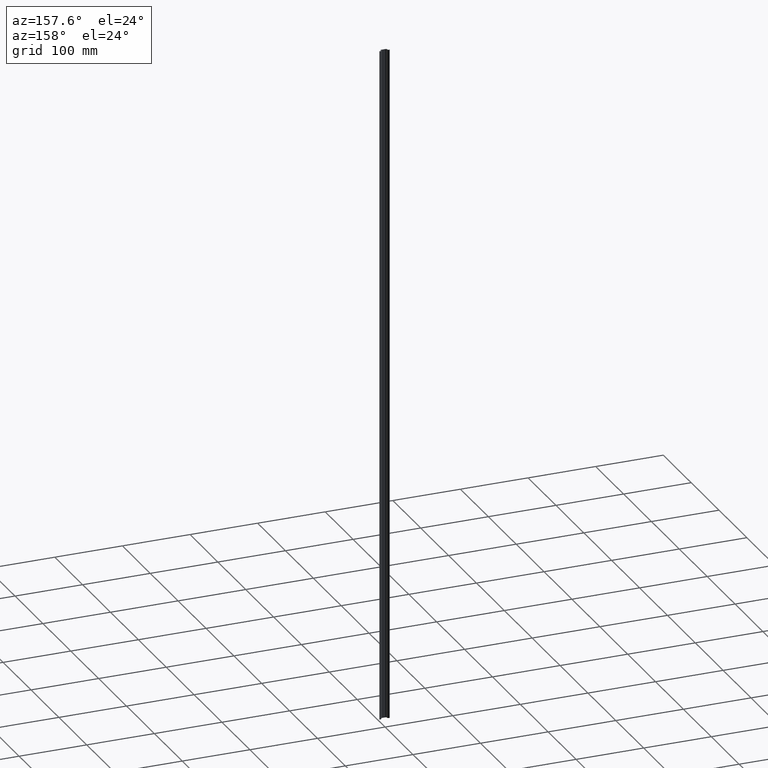
[diagram: clean part render]
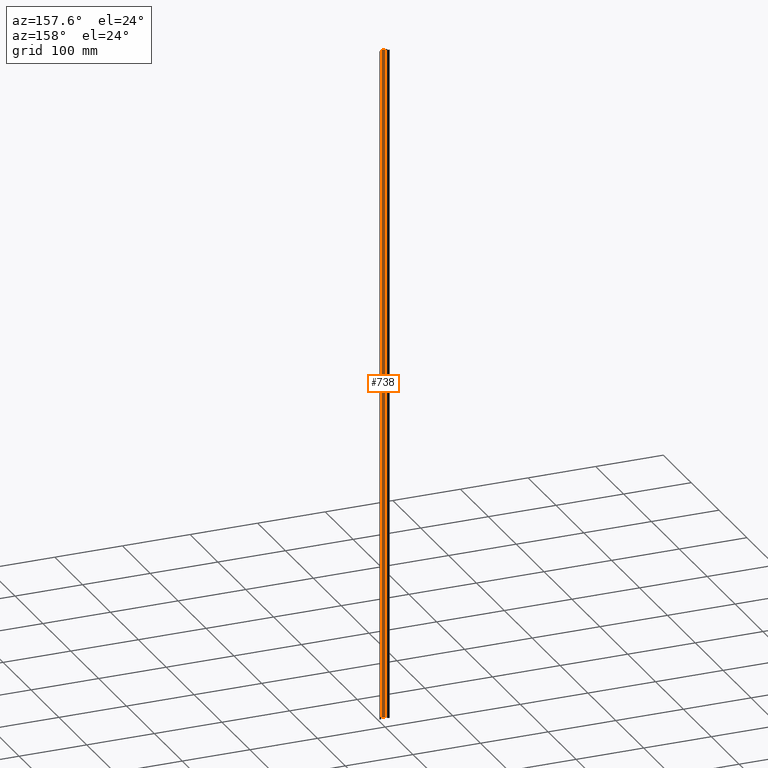
[diagram: same view with one face highlighted and labeled with its STEP entity id]
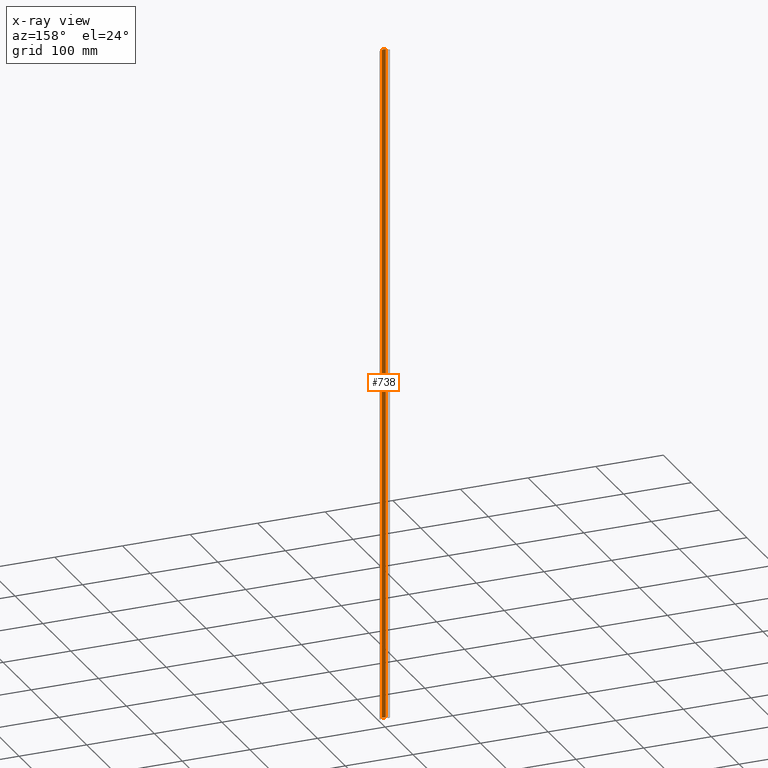
[diagram: x-ray of the same camera — body ghosted, the highlighted face saturated]
A machine part, auxiliary view. The second image highlights one B-rep face of the part: STEP entity #738.
The next image is the same camera in x-ray: the body ghosted, the highlighted face saturated — about 0% of this face is hidden behind the body in this view.
In plain terms, the highlighted planar face has unit normal (0, -1, 0).
Its self-contained STEP definition (entity closure, byte-faithful):
#25 = VECTOR ( 'NONE', #450, 1000.000000000000000 ) ;
#33 = VECTOR ( 'NONE', #385, 1000.000000000000000 ) ;
#39 = VECTOR ( 'NONE', #396, 1000.000000000000000 ) ;
#49 = VECTOR ( 'NONE', #491, 1000.000000000000000 ) ;
#64 = AXIS2_PLACEMENT_3D ( 'NONE', #543, #514, #540 ) ;
#136 = ORIENTED_EDGE ( 'NONE', *, *, #707, .T. ) ;
#160 = ORIENTED_EDGE ( 'NONE', *, *, #695, .T. ) ;
#168 = ORIENTED_EDGE ( 'NONE', *, *, #698, .F. ) ;
#186 = ORIENTED_EDGE ( 'NONE', *, *, #727, .T. ) ;
#257 = VERTEX_POINT ( 'NONE', #285 ) ;
#275 = VERTEX_POINT ( 'NONE', #358 ) ;
#280 = VERTEX_POINT ( 'NONE', #356 ) ;
#285 = CARTESIAN_POINT ( 'NONE',  ( 5.499999999999274400, 1.299999999999908800, 0.0000000000000000000 ) ) ;
#289 = EDGE_LOOP ( 'NONE', ( #168, #136, #186, #160 ) ) ;
#308 = VERTEX_POINT ( 'NONE', #331 ) ;
#318 = LINE ( 'NONE', #357, #33 ) ;
#331 = CARTESIAN_POINT ( 'NONE',  ( -8.673617379884035500E-015, 1.299999999999908800, 0.0000000000000000000 ) ) ;
#356 = CARTESIAN_POINT ( 'NONE',  ( -8.673617379884035500E-015, 1.299999999999936800, 1000.000000000000000 ) ) ;
#357 = CARTESIAN_POINT ( 'NONE',  ( -8.673617379884035500E-015, 1.299999999999908800, 1000.000000000000000 ) ) ;
#358 = CARTESIAN_POINT ( 'NONE',  ( 5.499999999999274400, 1.299999999999936800, 1000.000000000000000 ) ) ;
#376 = LINE ( 'NONE', #395, #25 ) ;
#385 = DIRECTION ( 'NONE',  ( -0.0000000000000000000, 0.0000000000000000000, 1.000000000000000000 ) ) ;
#390 = CARTESIAN_POINT ( 'NONE',  ( -3.700000000000881300, 1.299999999999964700, 1000.000000000000000 ) ) ;
#395 = CARTESIAN_POINT ( 'NONE',  ( 5.499999999999274400, 1.299999999999908800, 1000.000000000000000 ) ) ;
#396 = DIRECTION ( 'NONE',  ( -1.000000000000000000, -0.0000000000000000000, 0.0000000000000000000 ) ) ;
#406 = LINE ( 'NONE', #390, #39 ) ;
#450 = DIRECTION ( 'NONE',  ( 0.0000000000000000000, -0.0000000000000000000, -1.000000000000000000 ) ) ;
#460 = FACE_OUTER_BOUND ( 'NONE', #289, .T. ) ;
#478 = CARTESIAN_POINT ( 'NONE',  ( 5.499999999999274400, 1.299999999999908800, 0.0000000000000000000 ) ) ;
#483 = LINE ( 'NONE', #478, #49 ) ;
#488 = PLANE ( 'NONE',  #64 ) ;
#491 = DIRECTION ( 'NONE',  ( -1.000000000000000000, -0.0000000000000000000, -0.0000000000000000000 ) ) ;
#514 = DIRECTION ( 'NONE',  ( 0.0000000000000000000, -1.000000000000000000, 0.0000000000000000000 ) ) ;
#540 = DIRECTION ( 'NONE',  ( 0.0000000000000000000, -0.0000000000000000000, -1.000000000000000000 ) ) ;
#543 = CARTESIAN_POINT ( 'NONE',  ( 5.499999999999274400, 1.299999999999908800, 1000.000000000000000 ) ) ;
#695 = EDGE_CURVE ( 'NONE', #308, #280, #318, .T. ) ;
#698 = EDGE_CURVE ( 'NONE', #275, #280, #406, .T. ) ;
#707 = EDGE_CURVE ( 'NONE', #275, #257, #376, .T. ) ;
#727 = EDGE_CURVE ( 'NONE', #257, #308, #483, .T. ) ;
#738 = ADVANCED_FACE ( 'NONE', ( #460 ), #488, .F. ) ;